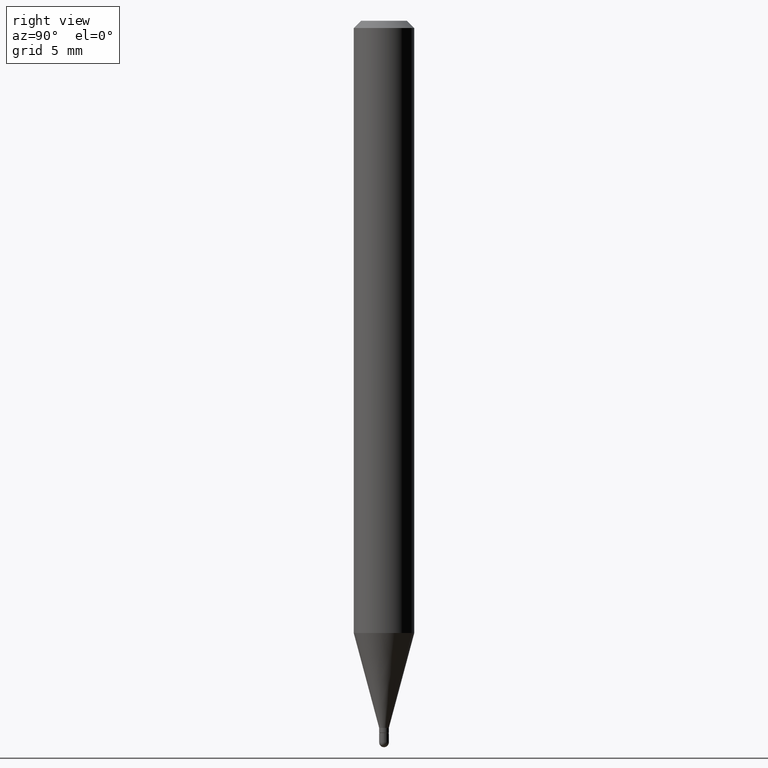
[diagram: clean part render]
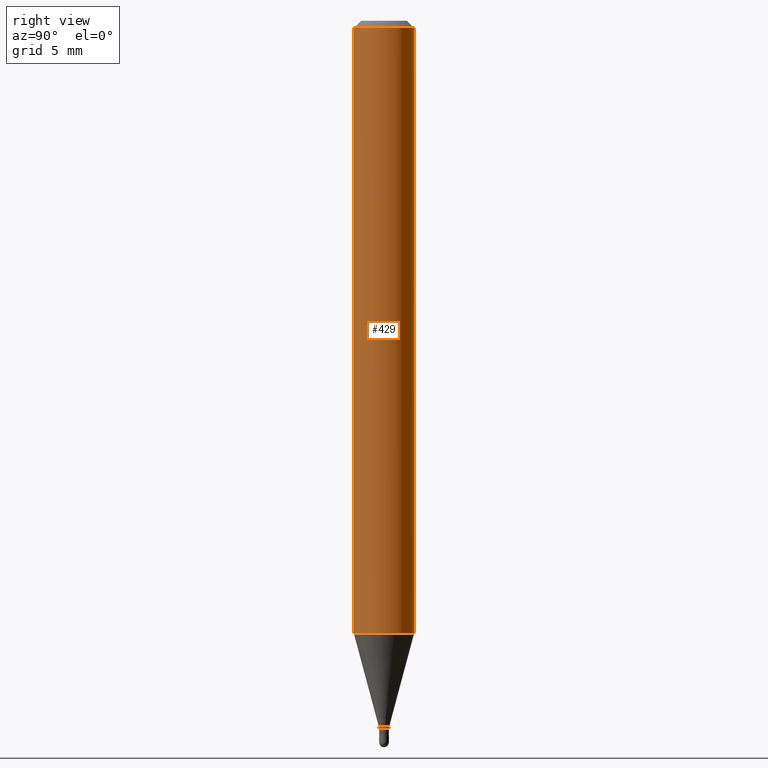
[diagram: same view with one face highlighted and labeled with its STEP entity id]
A machine part, right view. The second image highlights one B-rep face of the part: STEP entity #429.
In plain terms, the highlighted cylindrical surface (edge-blend (fillet) strip) has radius 1.5875 mm, axis along (-0, 0, 1).
Its self-contained STEP definition (entity closure, byte-faithful):
#21 = AXIS2_PLACEMENT_3D ( 'NONE', #292, #93, #332 ) ;
#24 = VERTEX_POINT ( 'NONE', #48 ) ;
#42 = CARTESIAN_POINT ( 'NONE',  ( 4.440892098500936776E-16, 0.06249999999999993755, -0.01500000000000022669 ) ) ;
#43 = VERTEX_POINT ( 'NONE', #42 ) ;
#48 = CARTESIAN_POINT ( 'NONE',  ( 4.440892098500932831E-16, 0.06249999999999556605, -1.264067332602634819 ) ) ;
#55 = LINE ( 'NONE', #154, #210 ) ;
#56 = CARTESIAN_POINT ( 'NONE',  ( -4.364351673553912750E-16, -0.06250000000000005551, -0.01499999999999979128 ) ) ;
#79 = CARTESIAN_POINT ( 'NONE',  ( 0.000000000000000000, 0.000000000000000000, 0.000000000000000000 ) ) ;
#82 = ORIENTED_EDGE ( 'NONE', *, *, #198, .F. ) ;
#93 = DIRECTION ( 'NONE',  ( -2.445480303060877688E-29, 3.491464874662722963E-15, 1.000000000000000000 ) ) ;
#96 = AXIS2_PLACEMENT_3D ( 'NONE', #254, #445, #336 ) ;
#118 = EDGE_CURVE ( 'NONE', #324, #24, #244, .T. ) ;
#127 = CYLINDRICAL_SURFACE ( 'NONE', #450, 0.06250000000000000000 ) ;
#128 = CARTESIAN_POINT ( 'NONE',  ( -4.364351673553916201E-16, -0.06250000000000000000, 2.182165546664201852E-16 ) ) ;
#133 = EDGE_CURVE ( 'NONE', #149, #43, #386, .T. ) ;
#149 = VERTEX_POINT ( 'NONE', #56 ) ;
#154 = CARTESIAN_POINT ( 'NONE',  ( 4.440892098500625669E-16, 0.06250000000000000000, -2.182165546664201852E-16 ) ) ;
#157 = FACE_OUTER_BOUND ( 'NONE', #387, .T. ) ;
#182 = ORIENTED_EDGE ( 'NONE', *, *, #476, .T. ) ;
#198 = EDGE_CURVE ( 'NONE', #324, #149, #370, .T. ) ;
#210 = VECTOR ( 'NONE', #430, 39.37007874015748143 ) ;
#216 = ORIENTED_EDGE ( 'NONE', *, *, #118, .T. ) ;
#244 = CIRCLE ( 'NONE', #21, 0.06250000000000000000 ) ;
#254 = CARTESIAN_POINT ( 'NONE',  ( 3.668220454591318687E-31, -5.237197311994087797E-17, -0.01500000000000000812 ) ) ;
#287 = DIRECTION ( 'NONE',  ( -6.982962677686265922E-15, -1.000000000000000000, 3.491464874662722963E-15 ) ) ;
#292 = CARTESIAN_POINT ( 'NONE',  ( 3.091251763622446182E-29, -4.413446690990699411E-15, -1.264067332602634597 ) ) ;
#321 = ORIENTED_EDGE ( 'NONE', *, *, #133, .F. ) ;
#324 = VERTEX_POINT ( 'NONE', #418 ) ;
#332 = DIRECTION ( 'NONE',  ( -6.982962677686265922E-15, -1.000000000000000000, 4.370956789862821150E-15 ) ) ;
#336 = DIRECTION ( 'NONE',  ( -6.982962677686265922E-15, -1.000000000000000000, 3.483106191921935554E-15 ) ) ;
#370 = LINE ( 'NONE', #128, #468 ) ;
#386 = CIRCLE ( 'NONE', #96, 0.06250000000000000000 ) ;
#387 = EDGE_LOOP ( 'NONE', ( #216, #182, #321, #82 ) ) ;
#418 = CARTESIAN_POINT ( 'NONE',  ( -4.364351673553606573E-16, -0.06250000000000441314, -1.264067332602634375 ) ) ;
#429 = ADVANCED_FACE ( 'NONE', ( #157 ), #127, .T. ) ;
#430 = DIRECTION ( 'NONE',  ( -2.445480303060877688E-29, 3.491464874662722568E-15, 1.000000000000000000 ) ) ;
#441 = DIRECTION ( 'NONE',  ( -2.445480303060877688E-29, 3.491464874662722963E-15, 1.000000000000000000 ) ) ;
#445 = DIRECTION ( 'NONE',  ( -2.445480303060877688E-29, 3.491464874662722963E-15, 1.000000000000000000 ) ) ;
#447 = DIRECTION ( 'NONE',  ( -2.445480303060877688E-29, 3.491464874662722568E-15, 1.000000000000000000 ) ) ;
#450 = AXIS2_PLACEMENT_3D ( 'NONE', #79, #441, #287 ) ;
#468 = VECTOR ( 'NONE', #447, 39.37007874015748143 ) ;
#476 = EDGE_CURVE ( 'NONE', #24, #43, #55, .T. ) ;